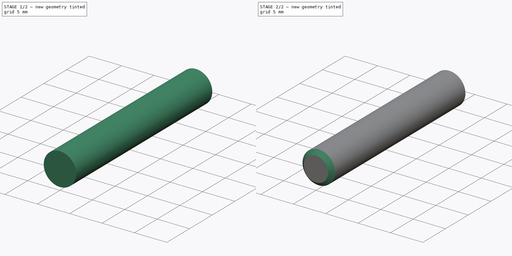
[diagram: build sequence overview — one tinted view per stage of 2, left to right]
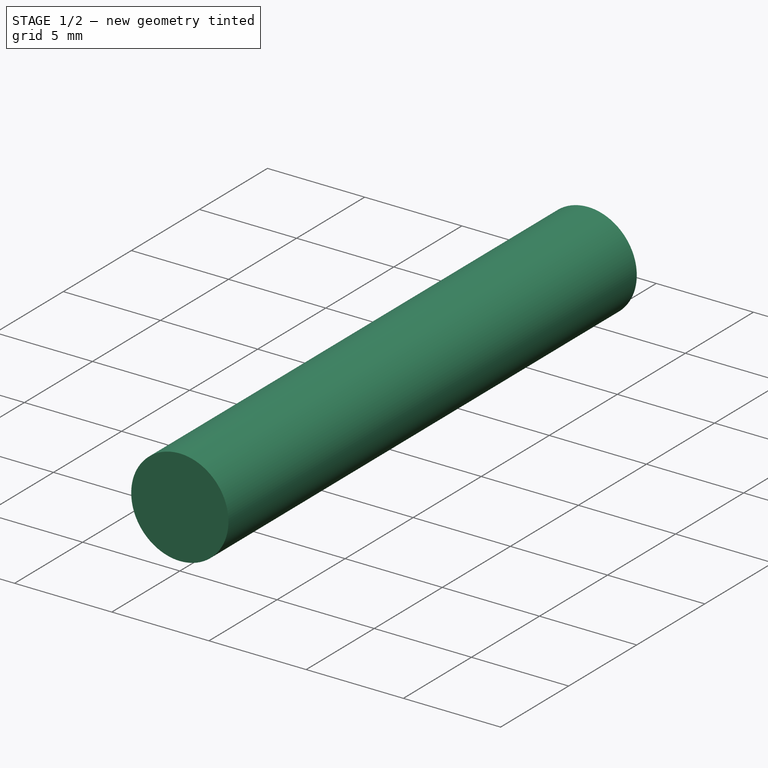
[diagram: stage 1 of 2 — iso view after this stage's code; geometry added in this stage tinted green]
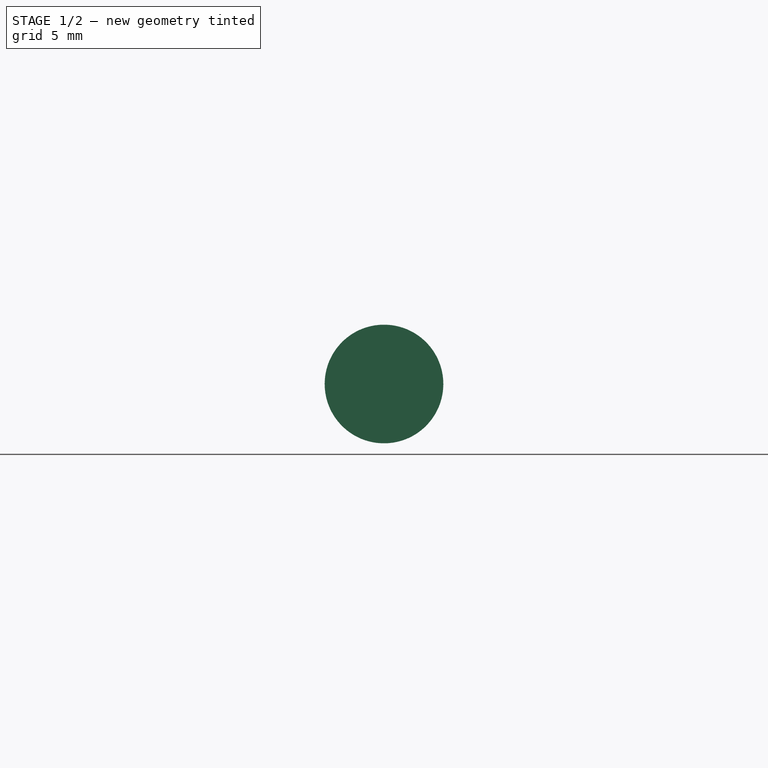
[diagram: stage 1 of 2 — front view after this stage's code; geometry added in this stage tinted green]
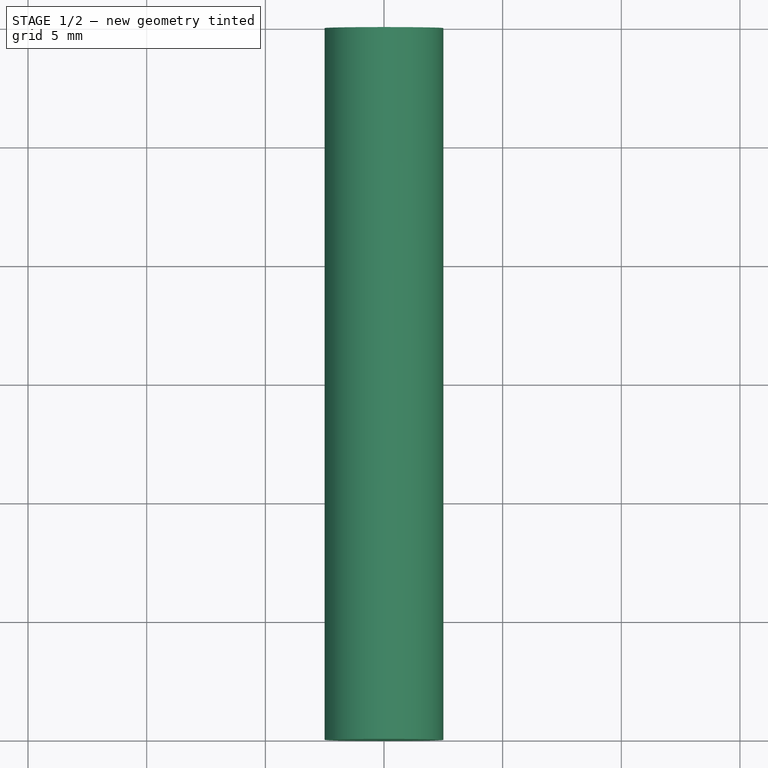
[diagram: stage 1 of 2 — top view after this stage's code; geometry added in this stage tinted green]
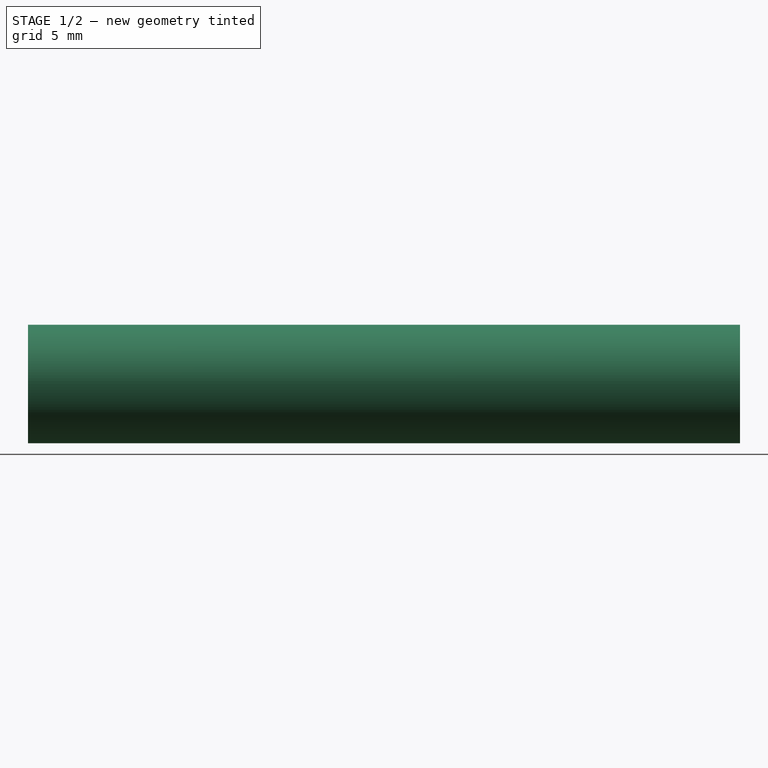
[diagram: stage 1 of 2 — right view after this stage's code; geometry added in this stage tinted green]
FCSTD DOCUMENT  (FreeCAD 0.22R38467 (Git))
Label: Control Pin
License: Public Domain
LicenseURL: https://en.wikipedia.org/wiki/Public_domain
objects: Sketcher::SketchObject×2, PartDesign::Pad×1, PartDesign::Groove×1, App::FeaturePython×1, PartDesign::CoordinateSystem×1, PartDesign::Body×1
note: 12 computed .brp shape members not serialized (recipe doc carries the construction recipe); baked Part::Feature solids carry a one-line shape summary decoded from their .brp

FEATURE [Sketcher::SketchObject] Sketch  label="End Profile"
  ArcFitTolerance = 0
  AttachmentSupport = -> [XZ_Plane]
  FullyConstrained = true
  MakeInternals = false
  MapMode = 5
  Placement = pos=(0,0,0) rot=(1,0,0;1.5708rad)
  expr: .Constraints.Radius = Variables.ShaftRadius
  sketch-geometry (1):
    g0: Circle CenterX=0 CenterY=0 CenterZ=0 NormalX=0 NormalY=0 NormalZ=1 AngleXU=0 Radius=2.5
  constraints (2):
    c: Coincident(g0,g-1)
    c: Radius(g0) = 2.5  'Radius'
FEATURE [PartDesign::Pad] Pad  label="Shaft Rod"
  Direction = (0,-1,2e-16)
  Length = 30
  Length2 = 10
  Midplane = true
  Placement = pos=(0,0,0) rot=(1,0,0;1.5708rad)
  Profile = -> Sketch
  ReferenceAxis = -> Sketch [N_Axis]
  Refine = true
  Suppressed = false
  Type = 0
  expr: Length = Variables.ShaftLength
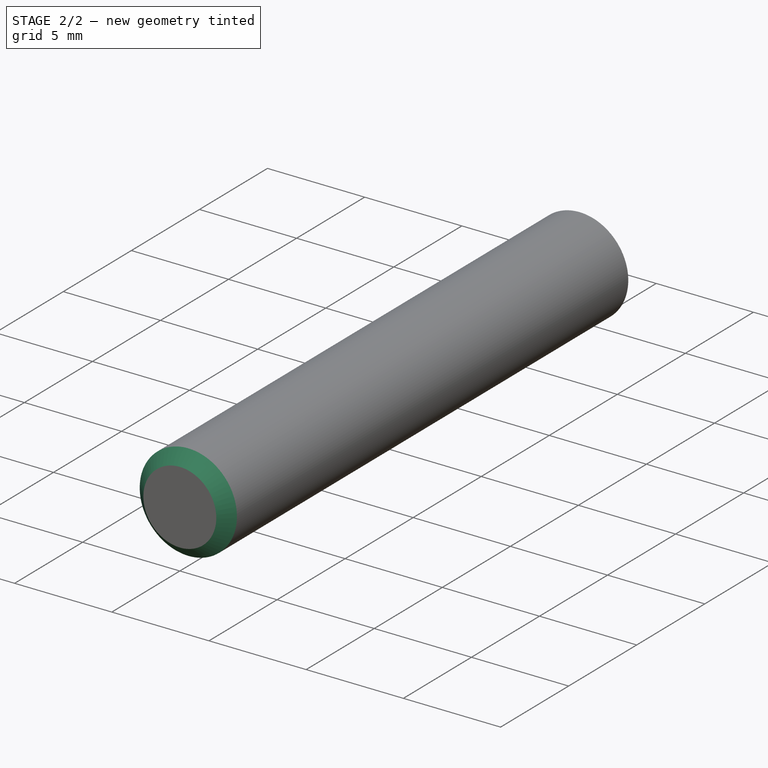
[diagram: stage 2 of 2 — iso view after this stage's code; geometry added in this stage tinted green]
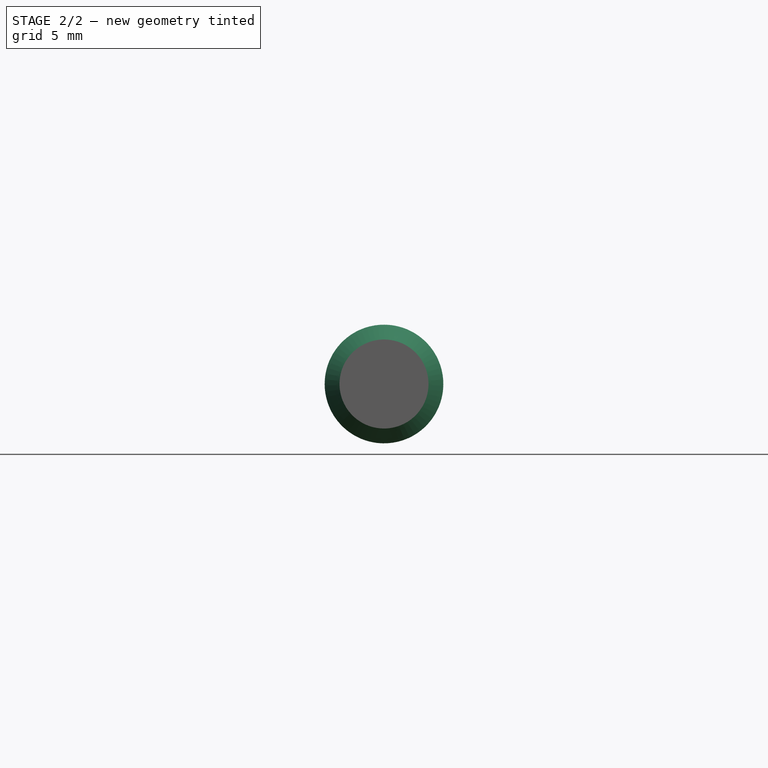
[diagram: stage 2 of 2 — front view after this stage's code; geometry added in this stage tinted green]
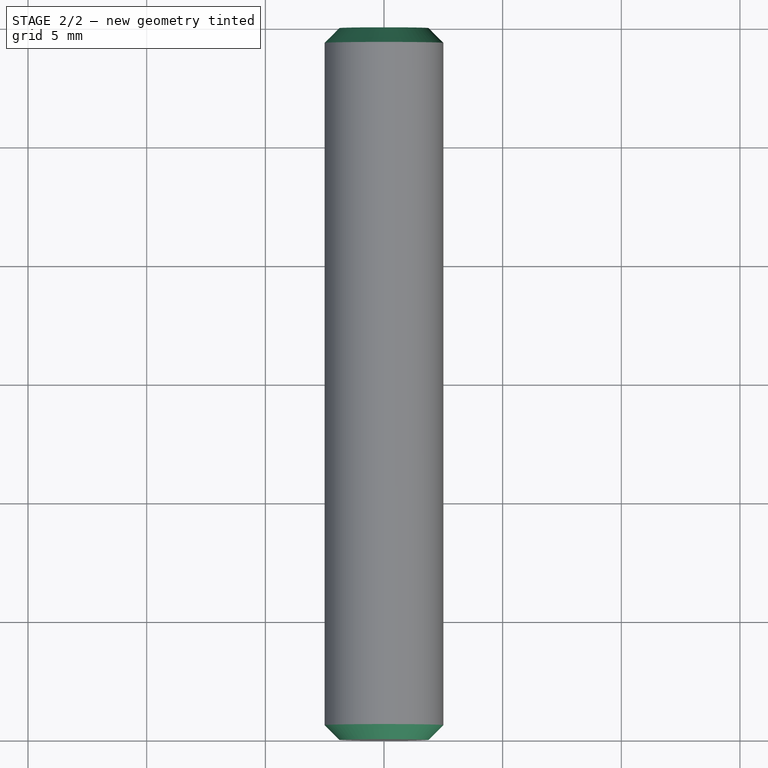
[diagram: stage 2 of 2 — top view after this stage's code; geometry added in this stage tinted green]
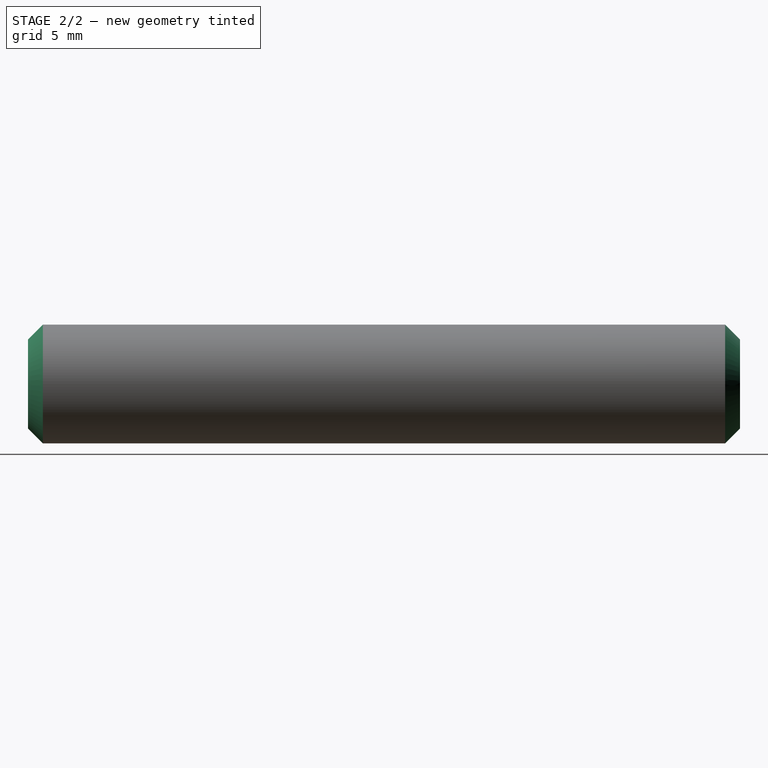
[diagram: stage 2 of 2 — right view after this stage's code; geometry added in this stage tinted green]
FEATURE [Sketcher::SketchObject] Sketch001  label="Bevel cut"
  ArcFitTolerance = 0
  AttachmentSupport = -> [YZ_Plane]
  FullyConstrained = true
  MakeInternals = false
  MapMode = 5
  Placement = pos=(0,0,0) rot=(0.57735,0.57735,0.57735;2.0944rad)
  expr: .Constraints.Midpoint = Variables.ShaftLength / 2
  expr: Constraints[12] = Variables.ShaftRadius
  expr: Constraints[13] = 0.01 * Variables.Bevel * Variables.ShaftRadius
  expr: Constraints[14] = Variables.ShaftRadius + 2
  expr: Constraints[15] = Variables.ShaftLength
  expr: Constraints[16] = Variables.BevelAngle
  expr: Constraints[17] = Variables.BevelAngle
  sketch-geometry (6):
    g0: LineSegment StartX=-15 StartY=4.5 StartZ=0 EndX=15 EndY=4.5 EndZ=0
    g1: LineSegment StartX=-14.375 StartY=2.5 StartZ=0 EndX=14.375 EndY=2.5 EndZ=0
    g2: LineSegment StartX=15 StartY=1.875 StartZ=0 EndX=15 EndY=4.5 EndZ=0
    g3: LineSegment StartX=14.375 StartY=2.5 StartZ=0 EndX=15 EndY=1.875 EndZ=0
    g4: LineSegment StartX=-14.375 StartY=2.5 StartZ=0 EndX=-15 EndY=1.875 EndZ=0
    g5: LineSegment StartX=-15 StartY=1.875 StartZ=0 EndX=-15 EndY=4.5 EndZ=0
  constraints (18):
    c: Horizontal(g0)
    c: Horizontal(g1)
    c: Coincident(g2,g0)
    c: Vertical(g2)
    c: Coincident(g3,g1)
    c: Coincident(g3,g2)
    c: Coincident(g4,g1)
    c: Vertical(g5)
    c: Coincident(g0,g5)
    c: Coincident(g5,g4)
    c: DistanceX(g2) = 15  'Midpoint'
    c: Equal(g5,g2)
    c: DistanceY(g1) = 2.5
    c: DistanceY(g2,g1) = 0.625
    c: DistanceY(g0) = 4.5
    c: DistanceX(g0,g0) = 30
    c: Angle(g4,g5) = 0.785398
    c: Angle(g2,g3) = 0.785398
FEATURE [PartDesign::Groove] Groove  label="Beveled Shaft"
  Angle = 360
  Angle2 = 60
  Axis = (0,1,0)
  Base = (0,0,0)
  BaseFeature = -> Pad
  Placement = pos=(0,0,0) rot=(1,0,0;1.5708rad)
  Profile = -> Sketch001
  ReferenceAxis = -> Sketch001 [H_Axis]
  Refine = true
  Reversed = true
  Suppressed = false
  Type = 0
FEATURE [App::FeaturePython] Variables  # WARN: FeaturePython — macro-defined, semantics opaque (R4)
  Bevel = 25
  BevelAngle = 45
  ShaftLength = 30
  ShaftRadius = 2.5
  Type = App::PropertyContainer
FEATURE [PartDesign::CoordinateSystem] Shaft_AP  label="Shaft AP"
  AttacherType = Attacher::AttachEngine3D
  AttachmentSupport = -> [Groove]
  MapMode = 11
  Placement = pos=(0,-14.375,3.2e-15) rot=(0.57735,-0.57735,0.57735;2.0944rad)
FEATURE [PartDesign::Body] Body  label="Control Pin"
  AllowCompound = false
  Group = -> [Sketch,Pad,Sketch001,Groove,Shaft_AP]
  Origin = -> Origin
  Tip = -> Groove
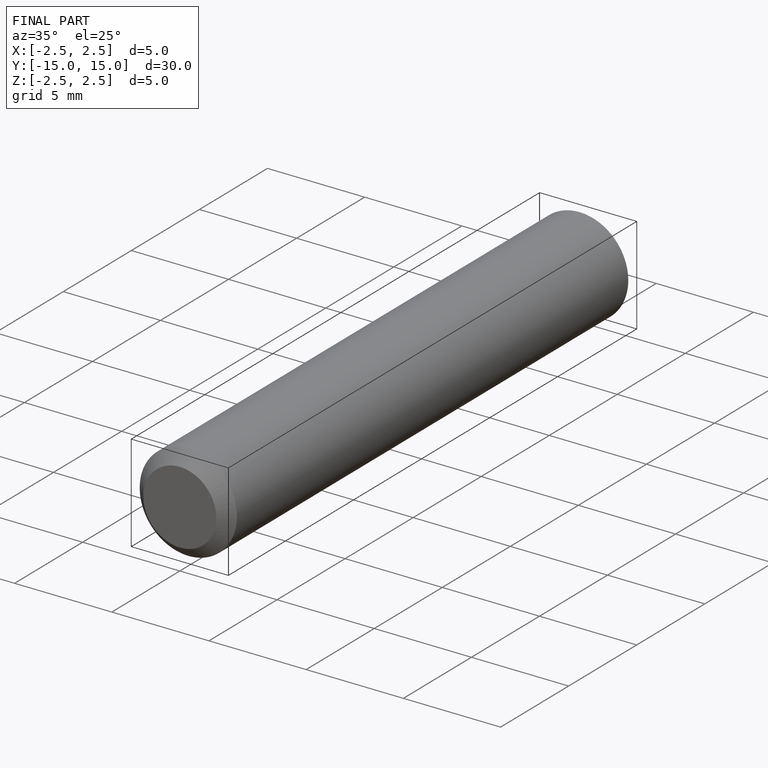
[diagram: finished part — iso view with bounding-box wireframe]
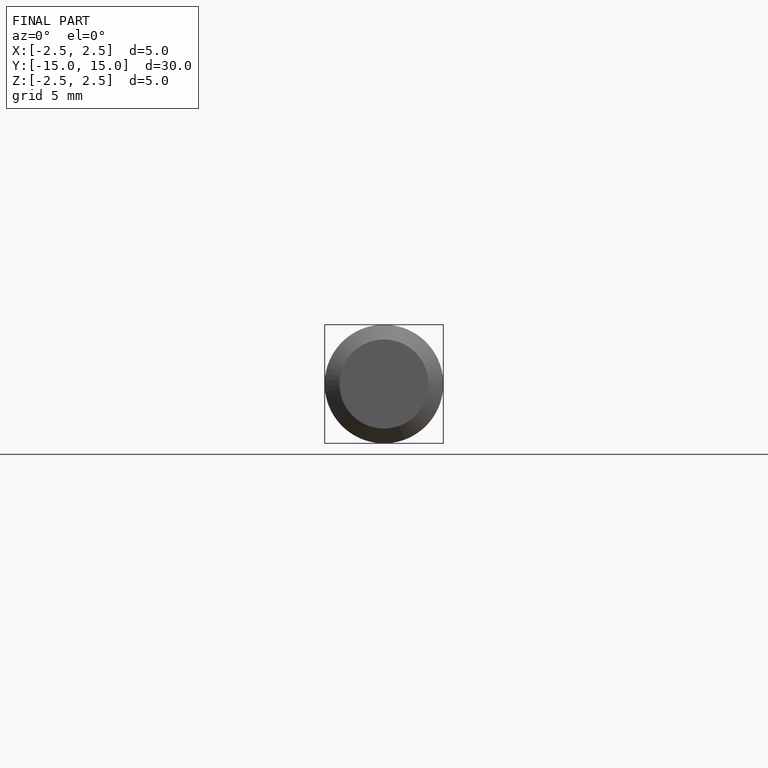
[diagram: finished part — front view with bounding-box wireframe]
